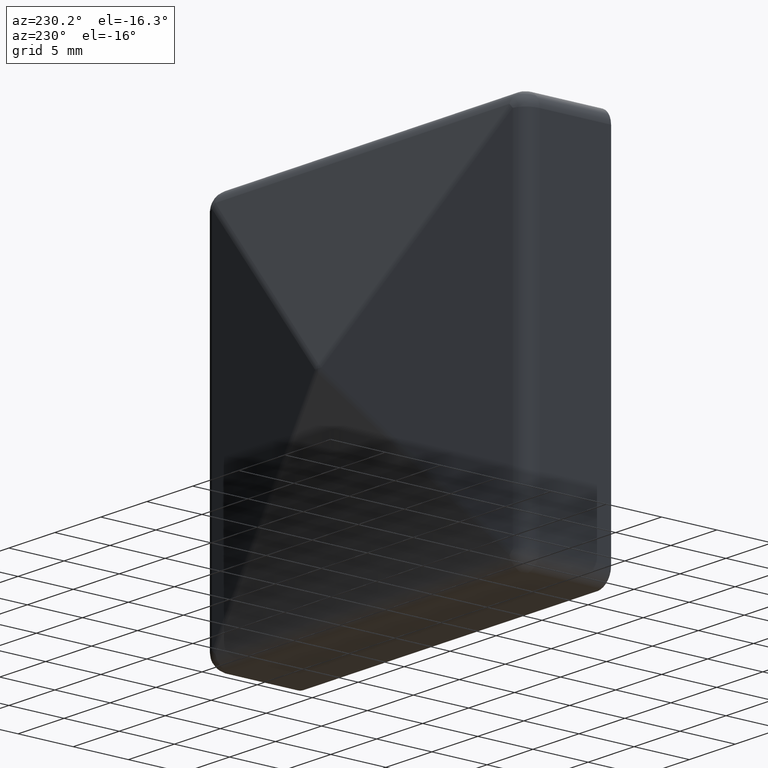
[diagram: clean part render]
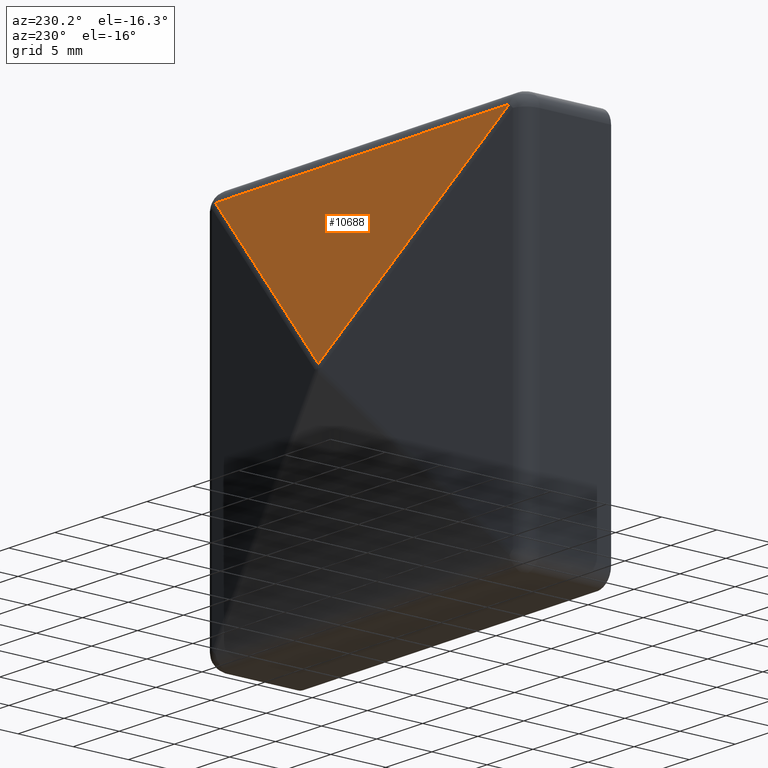
[diagram: same view with one face highlighted and labeled with its STEP entity id]
A machine part, auxiliary view. The second image highlights one B-rep face of the part: STEP entity #10688.
In plain terms, the highlighted planar face has unit normal (-0, -0.9701, -0.2425).
Its self-contained STEP definition (entity closure, byte-faithful):
#11 = LINE ( 'NONE', #16384, #405 ) ;
#144 = AXIS2_PLACEMENT_3D ( 'NONE', #12592, #10023, #15339 ) ;
#405 = VECTOR ( 'NONE', #3644, 1000.000000000000100 ) ;
#1637 = DIRECTION ( 'NONE',  ( -1.000000000000000000, -0.0000000000000000000, 2.220446049250313100E-016 ) ) ;
#2181 = ORIENTED_EDGE ( 'NONE', *, *, #5752, .F. ) ;
#2444 = CARTESIAN_POINT ( 'NONE',  ( 0.0000000000000000000, 11.95521375021799800, 0.3638034375545006700 ) ) ;
#2638 = ORIENTED_EDGE ( 'NONE', *, *, #6709, .T. ) ;
#3428 = DIRECTION ( 'NONE',  ( -0.6963106238227913000, 0.1740776559556982700, -0.6963106238227913000 ) ) ;
#3644 = DIRECTION ( 'NONE',  ( -0.6963106238227910700, -0.1740776559556982400, 0.6963106238227914100 ) ) ;
#3805 = PLANE ( 'NONE',  #144 ) ;
#4183 = CARTESIAN_POINT ( 'NONE',  ( -15.99999999999995900, 7.955213750217997600, 16.36380343755446600 ) ) ;
#5374 = CARTESIAN_POINT ( 'NONE',  ( 15.99999999999995900, 7.955213750217997600, 16.36380343755445900 ) ) ;
#5752 = EDGE_CURVE ( 'NONE', #15495, #13508, #6112, .T. ) ;
#6112 = LINE ( 'NONE', #6725, #9136 ) ;
#6709 = EDGE_CURVE ( 'NONE', #13082, #13508, #11, .T. ) ;
#6725 = CARTESIAN_POINT ( 'NONE',  ( 17.49999999999996800, 7.955213750217997600, 16.36380343755445900 ) ) ;
#6966 = ORIENTED_EDGE ( 'NONE', *, *, #16482, .T. ) ;
#8023 = EDGE_LOOP ( 'NONE', ( #6966, #2638, #2181 ) ) ;
#9136 = VECTOR ( 'NONE', #1637, 1000.000000000000000 ) ;
#9223 = VECTOR ( 'NONE', #3428, 1000.000000000000100 ) ;
#10023 = DIRECTION ( 'NONE',  ( -5.385372704143820900E-017, -0.9701425001453318800, -0.2425356250363335200 ) ) ;
#10688 = ADVANCED_FACE ( 'NONE', ( #12883 ), #3805, .F. ) ;
#12319 = CARTESIAN_POINT ( 'NONE',  ( 9.757575757575741800, 9.515819810824057300, 10.12137919513023800 ) ) ;
#12592 = CARTESIAN_POINT ( 'NONE',  ( 17.49999999999996400, 11.33756669139446600, 2.834391672848619600 ) ) ;
#12883 = FACE_OUTER_BOUND ( 'NONE', #8023, .T. ) ;
#13082 = VERTEX_POINT ( 'NONE', #2444 ) ;
#13508 = VERTEX_POINT ( 'NONE', #4183 ) ;
#14646 = LINE ( 'NONE', #12319, #9223 ) ;
#15339 = DIRECTION ( 'NONE',  ( 0.0000000000000000000, 0.2425356250363335200, -0.9701425001453318800 ) ) ;
#15495 = VERTEX_POINT ( 'NONE', #5374 ) ;
#16384 = CARTESIAN_POINT ( 'NONE',  ( -16.17638954548092300, 7.911116363847757100, 16.54019298303542800 ) ) ;
#16482 = EDGE_CURVE ( 'NONE', #15495, #13082, #14646, .T. ) ;